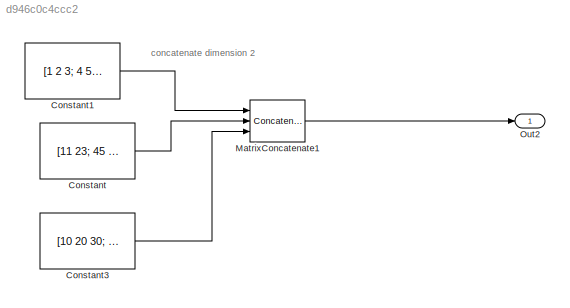
MODEL slx_d946c0c4ccc2
KIND model
CONFIG AbsTol = auto
CONFIG EnableMultiTasking = on
CONFIG FixedStep = 0.200000
CONFIG MaxStep = auto
CONFIG MinStep = auto
CONFIG RelTol = 1e-3
CONFIG SampleTimeConstraint = Unconstrained
CONFIG Solver = FixedStepDiscrete
CONFIG SolverName = FixedStepDiscrete
CONFIG StartTime = 0.0
CONFIG StopTime = 10.0
WORKSPACE source: MAT-file member
WORKSPACE already_pp = 0
BLOCK [Constant] Constant
  Value = [11 23; 45 67; 88 98]
BLOCK [Constant] Constant1
  Value = [1 2 3; 4 5 6; 7 8 9]
BLOCK [Constant] Constant3
  Value = [10 20 30; 40 50 60; 70 80 90]
BLOCK [Concatenate] MatrixConcatenate1
  ConcatenateDimension = 2
  Mode = Multidimensional array
  NumInputs = 3
  Ports = [3, 1]
BLOCK [Outport] Out2
  IconDisplay = Port number
ANNOTATION (root): concatenate dimension 2
LINE Constant1:1 -> MatrixConcatenate1:1
LINE Constant3:1 -> MatrixConcatenate1:3
LINE Constant:1 -> MatrixConcatenate1:2
LINE MatrixConcatenate1:1 -> Out2:1
